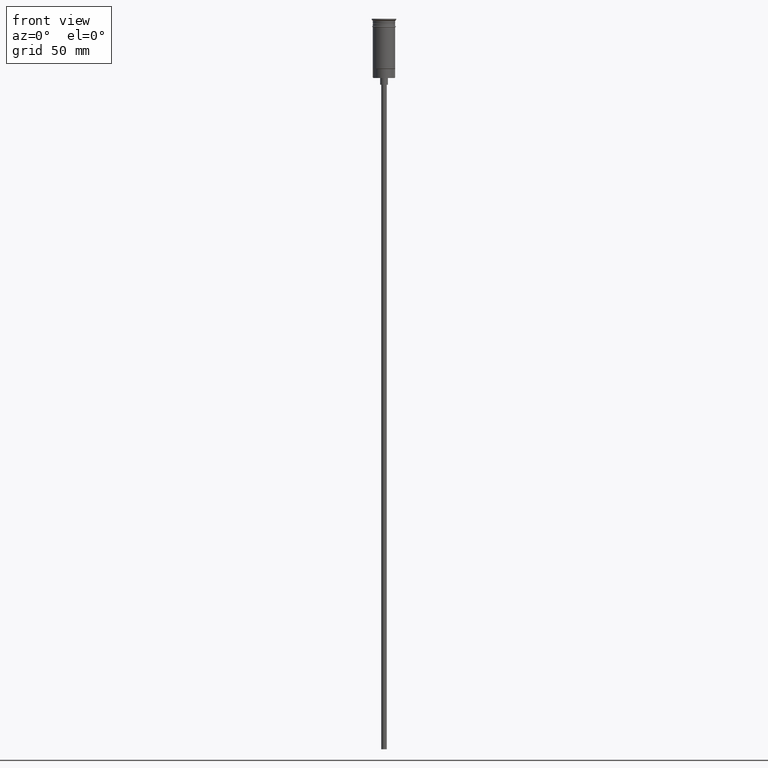
[diagram: clean part render]
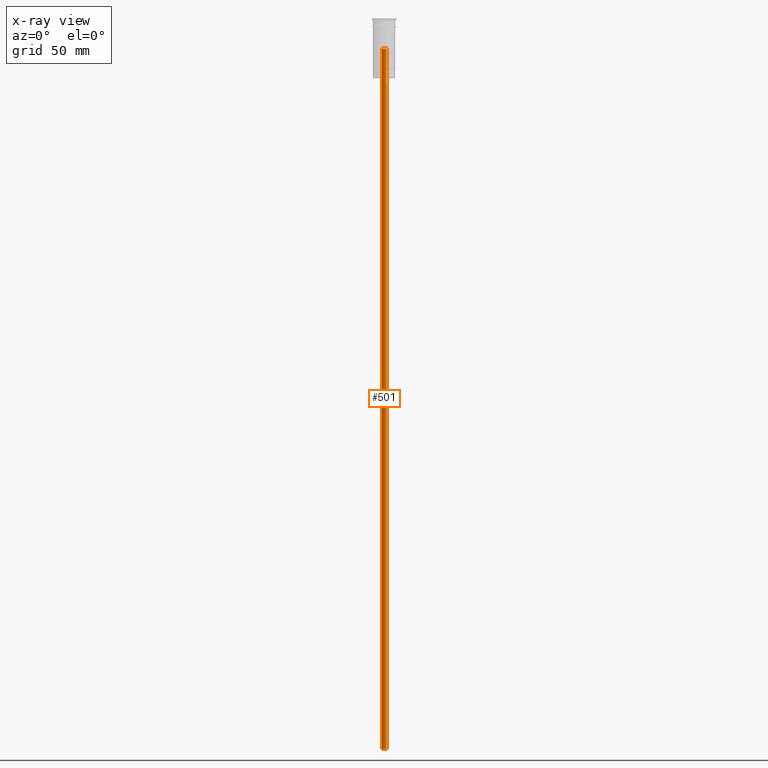
[diagram: x-ray — body ghosted, one internal face saturated and labeled with its STEP entity id]
A machine part, front view, then the same camera in x-ray: the body is ghosted and one INTERNAL B-rep face — a face not visible from any outside direction — is saturated and labeled: STEP entity #501.
In plain terms, the highlighted cylindrical surface (edge-blend (fillet) strip) has radius 1 mm, axis along (-0, -0, -1).
Its self-contained STEP definition (entity closure, byte-faithful):
#52 = CARTESIAN_POINT ( 'NONE',  ( 0.000000000000000000, 0.000000000000000000, -326.5000000000000000 ) ) ;
#69 = VECTOR ( 'NONE', #1308, 1000.000000000000000 ) ;
#183 = CARTESIAN_POINT ( 'NONE',  ( 1.000000000000000000, 1.224646799147353207E-16, -326.5000000000000000 ) ) ;
#254 = EDGE_CURVE ( 'NONE', #381, #1366, #470, .T. ) ;
#353 = CARTESIAN_POINT ( 'NONE',  ( 1.000000000000000000, 1.224646799147353207E-16, -10.67157287525383147 ) ) ;
#381 = VERTEX_POINT ( 'NONE', #1597 ) ;
#392 = FACE_OUTER_BOUND ( 'NONE', #1349, .T. ) ;
#393 = VECTOR ( 'NONE', #612, 1000.000000000000000 ) ;
#418 = CIRCLE ( 'NONE', #834, 1.000000000000000000 ) ;
#467 = CARTESIAN_POINT ( 'NONE',  ( 0.000000000000000000, 0.000000000000000000, -13.49999999999999822 ) ) ;
#470 = CIRCLE ( 'NONE', #1543, 1.000000000000000000 ) ;
#501 = ADVANCED_FACE ( 'NONE', ( #392 ), #764, .F. ) ;
#530 = CARTESIAN_POINT ( 'NONE',  ( 0.000000000000000000, 0.000000000000000000, -10.67157287525383147 ) ) ;
#584 = DIRECTION ( 'NONE',  ( 0.000000000000000000, 0.000000000000000000, -1.000000000000000000 ) ) ;
#593 = VERTEX_POINT ( 'NONE', #1604 ) ;
#612 = DIRECTION ( 'NONE',  ( -0.000000000000000000, -0.000000000000000000, -1.000000000000000000 ) ) ;
#665 = EDGE_CURVE ( 'NONE', #1366, #593, #1277, .T. ) ;
#716 = ORIENTED_EDGE ( 'NONE', *, *, #254, .F. ) ;
#752 = DIRECTION ( 'NONE',  ( -0.000000000000000000, -0.000000000000000000, -1.000000000000000000 ) ) ;
#764 = CYLINDRICAL_SURFACE ( 'NONE', #957, 1.000000000000000000 ) ;
#828 = DIRECTION ( 'NONE',  ( 0.000000000000000000, -1.000000000000000000, 0.000000000000000000 ) ) ;
#834 = AXIS2_PLACEMENT_3D ( 'NONE', #52, #584, #1078 ) ;
#850 = ORIENTED_EDGE ( 'NONE', *, *, #1237, .T. ) ;
#957 = AXIS2_PLACEMENT_3D ( 'NONE', #530, #752, #1502 ) ;
#1078 = DIRECTION ( 'NONE',  ( -1.000000000000000000, 0.000000000000000000, 0.000000000000000000 ) ) ;
#1088 = VERTEX_POINT ( 'NONE', #183 ) ;
#1104 = EDGE_CURVE ( 'NONE', #1088, #593, #418, .T. ) ;
#1108 = LINE ( 'NONE', #353, #393 ) ;
#1151 = ORIENTED_EDGE ( 'NONE', *, *, #1104, .T. ) ;
#1237 = EDGE_CURVE ( 'NONE', #381, #1088, #1108, .T. ) ;
#1277 = LINE ( 'NONE', #1542, #69 ) ;
#1286 = CARTESIAN_POINT ( 'NONE',  ( -1.000000000000000000, 0.000000000000000000, -13.49999999999999822 ) ) ;
#1308 = DIRECTION ( 'NONE',  ( -0.000000000000000000, -0.000000000000000000, -1.000000000000000000 ) ) ;
#1349 = EDGE_LOOP ( 'NONE', ( #716, #850, #1151, #1509 ) ) ;
#1366 = VERTEX_POINT ( 'NONE', #1286 ) ;
#1502 = DIRECTION ( 'NONE',  ( -1.000000000000000000, 0.000000000000000000, 0.000000000000000000 ) ) ;
#1509 = ORIENTED_EDGE ( 'NONE', *, *, #665, .F. ) ;
#1542 = CARTESIAN_POINT ( 'NONE',  ( -1.000000000000000000, 0.000000000000000000, -10.67157287525383147 ) ) ;
#1543 = AXIS2_PLACEMENT_3D ( 'NONE', #467, #1559, #828 ) ;
#1559 = DIRECTION ( 'NONE',  ( -0.000000000000000000, -3.942553354492746489E-16, -1.000000000000000000 ) ) ;
#1597 = CARTESIAN_POINT ( 'NONE',  ( 1.000000000000000000, 1.224646799147353207E-16, -13.49999999999999822 ) ) ;
#1604 = CARTESIAN_POINT ( 'NONE',  ( -1.000000000000000000, 0.000000000000000000, -326.5000000000000000 ) ) ;